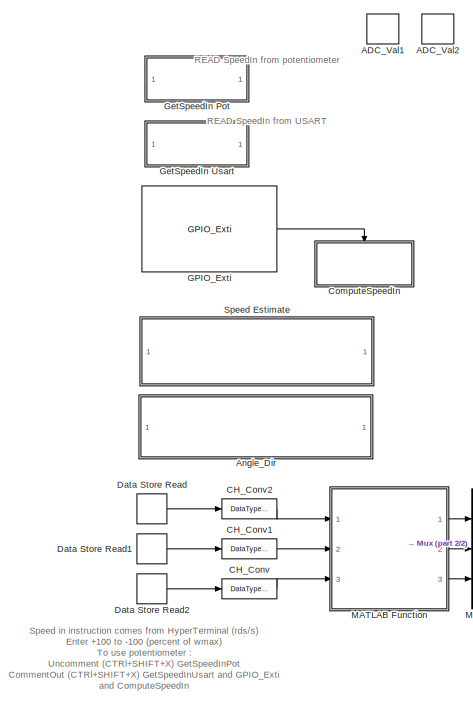
[diagram: root canvas - part 1/2, left side, full height]
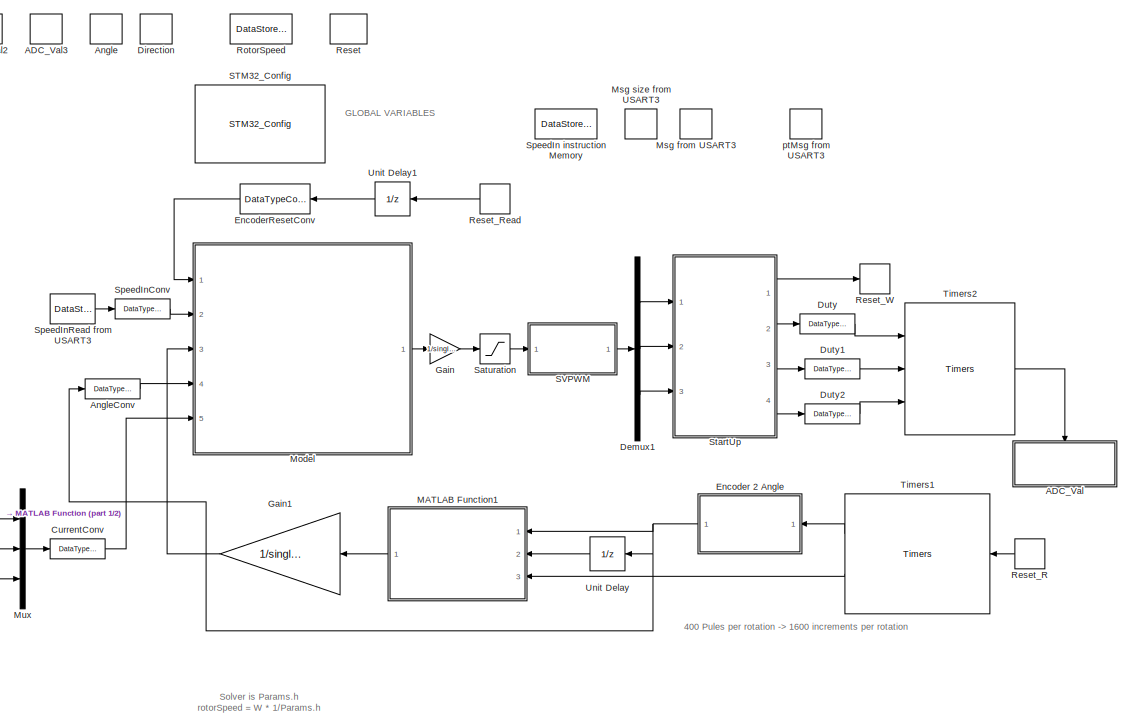
[diagram: root canvas - part 2/2, center side, full height]
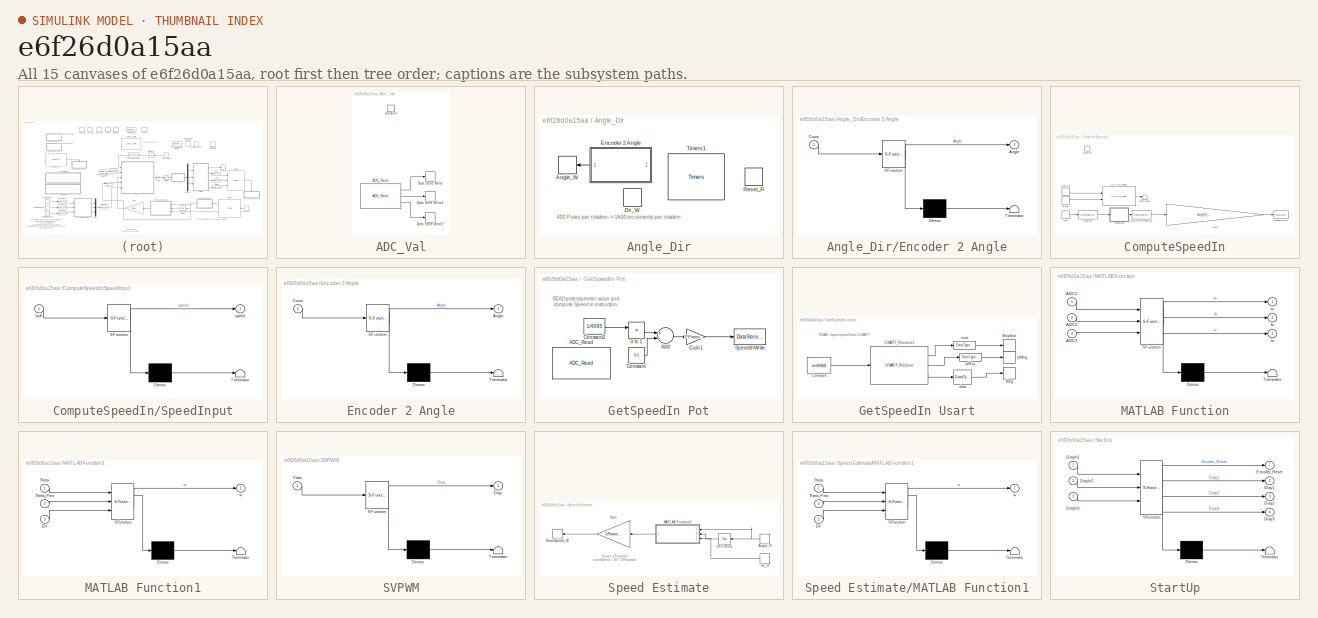
[diagram: thumbnail index - all 15 canvases of the model, root first then tree order]
MODEL slx_e6f26d0a15aa
KIND model
CONFIG AbsTol = auto
CONFIG EnableMultiTasking = on
CONFIG FixedStep = 0.001
CONFIG MaxStep = auto
CONFIG MinStep = auto
CONFIG PostLoadFcn = PMSM_Params
CONFIG RelTol = 1e-3
CONFIG SampleTimeConstraint = Unconstrained
CONFIG Solver = FixedStepAuto
CONFIG SolverName = FixedStepAuto
CONFIG StartTime = 0.0
CONFIG StopTime = 0.8
BLOCK [SubSystem] ADC_Val
  Ports = [0, 0, 0, 1]
  RequestExecContextInheritance = off
  TreatAsAtomicUnit = on
BLOCK [Reference] ADC_Val/ADC_Read  REF=ADC_Lib/ADC_Read
  Ports = [0, 3]
  SourceBlock = ADC_Lib/ADC_Read
  SourceProductName = Target Support Package - STM32 Adapter
  SourceType = ADC_Read
BLOCK [DataStoreWrite] ADC_Val/Data Store Write
  DataStoreName = CH1
  Ports = [1]
BLOCK [DataStoreWrite] ADC_Val/Data Store Write1
  DataStoreName = CH2
  Ports = [1]
BLOCK [DataStoreWrite] ADC_Val/Data Store Write2
  DataStoreName = CH3
  Ports = [1]
BLOCK [TriggerPort] ADC_Val/function
  Ports = []
  StatesWhenEnabling = held
  TriggerType = function-call
  VariantControl = Variant
BLOCK [DataStoreMemory] ADC_Val1
  DataStoreName = CH1
  OutDataTypeStr = fixdt('uint16', 'DataTypeOverride', 'Off')
  OutMax = 4095
  OutMin = 0
  ReadBeforeWriteMsg = warning
  ShowAdditionalParam = off
  WriteAfterReadMsg = warning
  WriteAfterWriteMsg = warning
BLOCK [DataStoreMemory] ADC_Val2
  DataStoreName = CH2
  OutDataTypeStr = fixdt('uint16', 'DataTypeOverride', 'Off')
  OutMax = 4095
  OutMin = 0
  ReadBeforeWriteMsg = warning
  ShowAdditionalParam = off
  WriteAfterReadMsg = warning
  WriteAfterWriteMsg = warning
BLOCK [DataStoreMemory] ADC_Val3
  DataStoreName = CH3
  OutDataTypeStr = fixdt('uint16', 'DataTypeOverride', 'Off')
  OutMax = 4095
  OutMin = 0
  ReadBeforeWriteMsg = warning
  ShowAdditionalParam = off
  WriteAfterReadMsg = warning
  WriteAfterWriteMsg = warning
BLOCK [DataStoreMemory] Angle
  DataStoreName = Angle
  OutDataTypeStr = fixdt('single', 'DataTypeOverride', 'Off')
  ReadBeforeWriteMsg = warning
  ShowAdditionalParam = off
  WriteAfterReadMsg = warning
  WriteAfterWriteMsg = warning
BLOCK [DataTypeConversion] AngleConv
  OutDataTypeStr = single
  RndMeth = Floor
  SaturateOnIntegerOverflow = off
BLOCK [SubSystem] Angle_Dir
  Commented = on
  Ports = []
  RequestExecContextInheritance = off
  SystemSampleTime = 0.001
  TreatAsAtomicUnit = on
BLOCK [DataStoreWrite] Angle_Dir/Angle_W
  DataStoreName = Angle
  Ports = [1]
BLOCK [DataStoreWrite] Angle_Dir/Dir_W
  DataStoreName = Dir
  Ports = [1]
BLOCK [SubSystem] Angle_Dir/Encoder 2 Angle
  ErrorFcn = Stateflow.Translate.translate
  MinAlgLoopOccurrences = on
  PermitHierarchicalResolution = ExplicitOnly
  Ports = [1, 1]
  RequestExecContextInheritance = off
  SFBlockType = MATLAB Function
  TreatAsAtomicUnit = on
BLOCK [Demux] Angle_Dir/Encoder 2 Angle/ Demux 
  Outputs = 1
  Ports = [1, 1]
BLOCK [S-Function] Angle_Dir/Encoder 2 Angle/ SFunction 
  EnableBusSupport = on
  FunctionName = sf_sfun
  Parameters = Params
  PortCounts = [1 2]
  Ports = [1, 2]
  SFcnIsStateOwnerBlock = off
  SFunctionDeploymentMode = off
  Tag = Stateflow S-Function MotorControl 2
BLOCK [Terminator] Angle_Dir/Encoder 2 Angle/ Terminator 
BLOCK [Outport] Angle_Dir/Encoder 2 Angle/Angle
  IconDisplay = Port number
BLOCK [Inport] Angle_Dir/Encoder 2 Angle/Count
  IconDisplay = Port number
BLOCK [DataStoreRead] Angle_Dir/Reset_R
  DataStoreName = Reset
  Ports = [0, 1]
BLOCK [Reference] Angle_Dir/Timers1  REF=TIMERS_Lib/Timers
  Ports = []
  SourceBlock = TIMERS_Lib/Timers
  SourceProductName = Target Support Package - STM32 Adapter
  SourceType = Timers
BLOCK [DataTypeConversion] CH_Conv
  OutDataTypeStr = uint16
  RndMeth = Floor
  SaturateOnIntegerOverflow = off
BLOCK [DataTypeConversion] CH_Conv1
  OutDataTypeStr = uint16
  RndMeth = Floor
  SaturateOnIntegerOverflow = off
BLOCK [DataTypeConversion] CH_Conv2
  OutDataTypeStr = uint16
  RndMeth = Floor
  SaturateOnIntegerOverflow = off
BLOCK [SubSystem] ComputeSpeedIn
  Ports = [0, 0, 0, 1]
  RequestExecContextInheritance = off
  TreatAsAtomicUnit = on
BLOCK [DataTypeConversion] ComputeSpeedIn/Data Type Conversion
  OutDataTypeStr = single
  RndMeth = Floor
  SaturateOnIntegerOverflow = off
BLOCK [Gain] ComputeSpeedIn/Gain1
  Gain = single(single(Params.wmax)*single(Params.p)/single(100))
  OutDataTypeStr = fixdt('single', 'DataTypeOverride', 'Off')
  ParamDataTypeStr = double
  SaturateOnIntegerOverflow = off
BLOCK [DataStoreRead] ComputeSpeedIn/Msg
  DataStoreName = Msg
  Ports = [0, 1]
BLOCK [DataStoreRead] ComputeSpeedIn/MsgSize
  DataStoreName = MsgSize
  Ports = [0, 1]
BLOCK [DataStoreWrite] ComputeSpeedIn/SpeedInWrite
  DataStoreName = SpeedIn
  Ports = [1]
BLOCK [SubSystem] ComputeSpeedIn/SpeedInput
  ErrorFcn = Stateflow.Translate.translate
  PermitHierarchicalResolution = ExplicitOnly
  Ports = [1, 1]
  RequestExecContextInheritance = off
  SFBlockType = MATLAB Function
  TreatAsAtomicUnit = on
BLOCK [Demux] ComputeSpeedIn/SpeedInput/ Demux 
  Outputs = 1
  Ports = [1, 1]
BLOCK [S-Function] ComputeSpeedIn/SpeedInput/ SFunction 
  EnableBusSupport = on
  FunctionName = sf_sfun
  PortCounts = [1 2]
  Ports = [1, 2]
  SFcnIsStateOwnerBlock = off
  SFunctionDeploymentMode = off
  Tag = Stateflow S-Function MotorControl 4
BLOCK [Terminator] ComputeSpeedIn/SpeedInput/ Terminator 
BLOCK [Inport] ComputeSpeedIn/SpeedInput/buff
  IconDisplay = Port number
BLOCK [Outport] ComputeSpeedIn/SpeedInput/speed
  IconDisplay = Port number
BLOCK [Terminator] ComputeSpeedIn/Terminator
BLOCK [Reference] ComputeSpeedIn/USART_Send1  REF=USART_Lib/USART_Send
  Ports = [2, 1]
  SourceBlock = USART_Lib/USART_Send
  SourceProductName = Target Support Package - STM32 Adapter
  SourceType = USART_Send
BLOCK [TriggerPort] ComputeSpeedIn/function
  Ports = []
  StatesWhenEnabling = held
  TriggerType = function-call
  VariantControl = Variant
BLOCK [DataTypeConversion] ComputeSpeedIn/msgConv
  OutDataTypeStr = uint8
  RndMeth = Floor
  SaturateOnIntegerOverflow = off
BLOCK [DataStoreRead] ComputeSpeedIn/ptMsg
  DataStoreName = ptMsg
  Ports = [0, 1]
BLOCK [DataTypeConversion] CurrentConv
  OutDataTypeStr = single
  RndMeth = Floor
  SaturateOnIntegerOverflow = off
BLOCK [DataStoreRead] Data Store Read
  DataStoreName = CH1
  Ports = [0, 1]
BLOCK [DataStoreRead] Data Store Read1
  DataStoreName = CH2
  Ports = [0, 1]
BLOCK [DataStoreRead] Data Store Read2
  DataStoreName = CH3
  Ports = [0, 1]
BLOCK [Demux] Demux1
  DisplayOption = bar
  Outputs = 3
  Ports = [1, 3]
BLOCK [DataStoreMemory] Direction
  DataStoreName = Dir
  OutDataTypeStr = fixdt('uint8', 'DataTypeOverride', 'Off')
  ReadBeforeWriteMsg = warning
  ShowAdditionalParam = off
  WriteAfterReadMsg = warning
  WriteAfterWriteMsg = warning
BLOCK [DataTypeConversion] Duty
  OutDataTypeStr = fixdt('single', 'DataTypeOverride', 'Off')
  RndMeth = Floor
  SaturateOnIntegerOverflow = off
BLOCK [DataTypeConversion] Duty1
  OutDataTypeStr = fixdt('single', 'DataTypeOverride', 'Off')
  RndMeth = Floor
  SaturateOnIntegerOverflow = off
BLOCK [DataTypeConversion] Duty2
  OutDataTypeStr = fixdt('single', 'DataTypeOverride', 'Off')
  RndMeth = Floor
  SaturateOnIntegerOverflow = off
BLOCK [SubSystem] Encoder 2 Angle
  ErrorFcn = Stateflow.Translate.translate
  MinAlgLoopOccurrences = on
  PermitHierarchicalResolution = ExplicitOnly
  Ports = [1, 1]
  RequestExecContextInheritance = off
  SFBlockType = MATLAB Function
  TreatAsAtomicUnit = on
BLOCK [Demux] Encoder 2 Angle/ Demux 
  Outputs = 1
  Ports = [1, 1]
BLOCK [S-Function] Encoder 2 Angle/ SFunction 
  EnableBusSupport = on
  FunctionName = sf_sfun
  Parameters = Params
  PortCounts = [1 2]
  Ports = [1, 2]
  SFcnIsStateOwnerBlock = off
  SFunctionDeploymentMode = off
  Tag = Stateflow S-Function MotorControl 6
BLOCK [Terminator] Encoder 2 Angle/ Terminator 
BLOCK [Outport] Encoder 2 Angle/Angle
  IconDisplay = Port number
BLOCK [Inport] Encoder 2 Angle/Count
  IconDisplay = Port number
BLOCK [DataTypeConversion] EncoderResetConv
  OutDataTypeStr = boolean
  RndMeth = Floor
  SaturateOnIntegerOverflow = off
BLOCK [Reference] GPIO_Exti  REF=GPIO_Lib/GPIO_Exti
  Ports = [0, 1]
  SourceBlock = GPIO_Lib/GPIO_Exti
  SourceProductName = Target Support Package - STM32 Adapter
  SourceType = GPIO_Exti
BLOCK [Gain] Gain
  Gain = 1/single(Params.Imax)
  OutDataTypeStr = Inherit: Inherit via internal rule
  ParamDataTypeStr = Inherit: Inherit via internal rule
  SaturateOnIntegerOverflow = off
BLOCK [Gain] Gain1
  Gain = 1/single(Params.h)
  OutDataTypeStr = double
  ParamDataTypeStr = Inherit: Inherit via internal rule
  SaturateOnIntegerOverflow = off
BLOCK [SubSystem] GetSpeedIn Pot
  Commented = on
  Ports = []
  RequestExecContextInheritance = off
  SystemSampleTime = 0.1
  TreatAsAtomicUnit = on
BLOCK [Product] GetSpeedIn Pot/0 to 1
  InputSameDT = off
  OutDataTypeStr = double
  OutMax = 1
  OutMin = 0
  Ports = [2, 1]
  SaturateOnIntegerOverflow = off
BLOCK [Reference] GetSpeedIn Pot/ADC_Read  REF=ADC_Lib/ADC_Read
  Ports = []
  SourceBlock = ADC_Lib/ADC_Read
  SourceProductName = Target Support Package - STM32 Adapter
  SourceType = ADC_Read
BLOCK [Sum] GetSpeedIn Pot/Add
  AccumDataTypeStr = double
  InputSameDT = off
  Inputs = +-
  OutDataTypeStr = Inherit: Inherit via internal rule
  OutMax = 0.5
  OutMin = -0.5
  Ports = [2, 1]
  SaturateOnIntegerOverflow = off
BLOCK [Constant] GetSpeedIn Pot/Constant
  Value = 0.5
BLOCK [Constant] GetSpeedIn Pot/Constant2
  Value = 1/4095
BLOCK [Gain] GetSpeedIn Pot/Gain1
  Gain = 2*Params.wmax*Params.p*0.9
  OutDataTypeStr = double
  ParamDataTypeStr = double
  SaturateOnIntegerOverflow = off
BLOCK [DataStoreWrite] GetSpeedIn Pot/SpeedInWrite
  DataStoreName = SpeedIn
  Ports = [1]
BLOCK [SubSystem] GetSpeedIn Usart
  Ports = []
  RequestExecContextInheritance = off
  SystemSampleTime = 0.1
  TreatAsAtomicUnit = on
BLOCK [Constant] GetSpeedIn Usart/Constant
  OutDataTypeStr = fixdt('uint16', 'DataTypeOverride', 'Off')
  Value = uint16(4)
BLOCK [DataStoreWrite] GetSpeedIn Usart/Msg
  DataStoreName = Msg
  Ports = [1]
BLOCK [DataStoreWrite] GetSpeedIn Usart/MsgSize
  DataStoreName = MsgSize
  Ports = [1]
BLOCK [Reference] GetSpeedIn Usart/USART_Receive1  REF=USART_Lib/USART_Receive
  Ports = [1, 3]
  SourceBlock = USART_Lib/USART_Receive
  SourceProductName = Target Support Package - STM32 Adapter
  SourceType = USART_Receive
BLOCK [DataTypeConversion] GetSpeedIn Usart/data
  OutDataTypeStr = fixdt('uint8', 'DataTypeOverride', 'Off')
  RndMeth = Floor
  SaturateOnIntegerOverflow = off
BLOCK [DataStoreWrite] GetSpeedIn Usart/ptMsg
  DataStoreName = ptMsg
  Ports = [1]
BLOCK [DataTypeConversion] GetSpeedIn Usart/ptRcv
  OutDataTypeStr = fixdt('uint32', 'DataTypeOverride', 'Off')
  RndMeth = Floor
  SaturateOnIntegerOverflow = off
BLOCK [DataTypeConversion] GetSpeedIn Usart/size
  OutDataTypeStr = fixdt('uint16', 'DataTypeOverride', 'Off')
  RndMeth = Floor
  SaturateOnIntegerOverflow = off
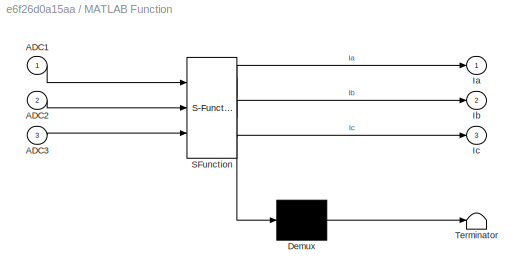
BLOCK [SubSystem] MATLAB Function
  ErrorFcn = Stateflow.Translate.translate
  PermitHierarchicalResolution = ExplicitOnly
  Ports = [3, 3]
  RequestExecContextInheritance = off
  SFBlockType = MATLAB Function
  TreatAsAtomicUnit = on
BLOCK [Demux] MATLAB Function/ Demux 
  Outputs = 1
  Ports = [1, 1]
BLOCK [S-Function] MATLAB Function/ SFunction 
  EnableBusSupport = on
  FunctionName = sf_sfun
  PortCounts = [3 4]
  Ports = [3, 4]
  SFcnIsStateOwnerBlock = off
  SFunctionDeploymentMode = off
  Tag = Stateflow S-Function MotorControl 3
BLOCK [Terminator] MATLAB Function/ Terminator 
BLOCK [Inport] MATLAB Function/ADC1
  IconDisplay = Port number
BLOCK [Inport] MATLAB Function/ADC2
  IconDisplay = Port number
  Port = 2
BLOCK [Inport] MATLAB Function/ADC3
  IconDisplay = Port number
  Port = 3
BLOCK [Outport] MATLAB Function/Ia
  IconDisplay = Port number
BLOCK [Outport] MATLAB Function/Ib
  IconDisplay = Port number
  Port = 2
BLOCK [Outport] MATLAB Function/Ic
  IconDisplay = Port number
  Port = 3
BLOCK [SubSystem] MATLAB Function1
  ErrorFcn = Stateflow.Translate.translate
  PermitHierarchicalResolution = ExplicitOnly
  Ports = [3, 1]
  RequestExecContextInheritance = off
  SFBlockType = MATLAB Function
  TreatAsAtomicUnit = on
BLOCK [Demux] MATLAB Function1/ Demux 
  Outputs = 1
  Ports = [1, 1]
BLOCK [S-Function] MATLAB Function1/ SFunction 
  EnableBusSupport = on
  FunctionName = sf_sfun
  PortCounts = [3 2]
  Ports = [3, 2]
  SFcnIsStateOwnerBlock = off
  SFunctionDeploymentMode = off
  Tag = Stateflow S-Function MotorControl 8
BLOCK [Terminator] MATLAB Function1/ Terminator 
BLOCK [Inport] MATLAB Function1/Dir
  IconDisplay = Port number
  Port = 3
BLOCK [Inport] MATLAB Function1/Theta
  IconDisplay = Port number
BLOCK [Inport] MATLAB Function1/Theta_Prev
  IconDisplay = Port number
  Port = 2
BLOCK [Outport] MATLAB Function1/w
  IconDisplay = Port number
BLOCK [ModelReference] Model
  ModelNameDialog = PMSM_FOC_Compute.slx
  ModelReferenceVersion = 1.373
  Ports = [5, 1]
BLOCK [DataStoreMemory] Msg from USART3
  DataStoreName = Msg
  InitialValue = [0,0,0,0,0,0,0,0]
  OutDataTypeStr = fixdt('uint8', 'DataTypeOverride', 'Off')
  ReadBeforeWriteMsg = warning
  ShowAdditionalParam = off
  WriteAfterReadMsg = warning
  WriteAfterWriteMsg = warning
BLOCK [DataStoreMemory] Msg size from USART3
  DataStoreName = MsgSize
  OutDataTypeStr = fixdt('uint16', 'DataTypeOverride', 'Off')
  ReadBeforeWriteMsg = warning
  ShowAdditionalParam = off
  WriteAfterReadMsg = warning
  WriteAfterWriteMsg = warning
BLOCK [Mux] Mux
  DisplayOption = bar
  Inputs = 3
  Ports = [3, 1]
BLOCK [DataStoreMemory] Reset
  DataStoreName = Reset
  InitialValue = 1
  OutDataTypeStr = fixdt('uint8', 'DataTypeOverride', 'Off')
  ReadBeforeWriteMsg = warning
  ShowAdditionalParam = off
  WriteAfterReadMsg = warning
  WriteAfterWriteMsg = warning
BLOCK [DataStoreRead] Reset_R
  DataStoreName = Reset
  Ports = [0, 1]
BLOCK [DataStoreRead] Reset_Read
  DataStoreName = Reset
  Ports = [0, 1]
BLOCK [DataStoreWrite] Reset_W
  DataStoreName = Reset
  Ports = [1]
BLOCK [DataStoreMemory] RotorSpeed
  DataStoreName = RotorSpeed
  OutDataTypeStr = fixdt('single', 'DataTypeOverride', 'Off')
  ReadBeforeWriteMsg = warning
  ShowAdditionalParam = off
  WriteAfterReadMsg = warning
  WriteAfterWriteMsg = warning
BLOCK [Reference] STM32_Config  REF=STM32_Config_Lib/STM32_Config
  Ports = []
  Priority = 0
  SourceBlock = STM32_Config_Lib/STM32_Config
  SourceProductName = Target Support Package - STM32 Adapter
  SourceType = STM32_Config
BLOCK [SubSystem] SVPWM
  ErrorFcn = Stateflow.Translate.translate
  PermitHierarchicalResolution = ExplicitOnly
  Ports = [1, 1]
  RequestExecContextInheritance = off
  SFBlockType = MATLAB Function
  TreatAsAtomicUnit = on
BLOCK [Demux] SVPWM/ Demux 
  Outputs = 1
  Ports = [1, 1]
BLOCK [S-Function] SVPWM/ SFunction 
  EnableBusSupport = on
  FunctionName = sf_sfun
  PortCounts = [1 2]
  Ports = [1, 2]
  SFcnIsStateOwnerBlock = off
  SFunctionDeploymentMode = off
  Tag = Stateflow S-Function MotorControl 7
BLOCK [Terminator] SVPWM/ Terminator 
BLOCK [Outport] SVPWM/Duty
  IconDisplay = Port number
BLOCK [Inport] SVPWM/Vabc
  IconDisplay = Port number
BLOCK [Saturate] Saturation
  InputPortMap = u0
  LowerLimit = -1
  Ports = [1, 1]
  UpperLimit = 1
BLOCK [SubSystem] Speed Estimate
  Commented = on
  Ports = []
  RequestExecContextInheritance = off
  SystemSampleTime = 1/500
  TreatAsAtomicUnit = on
BLOCK [DataStoreRead] Speed Estimate/Angle_R
  DataStoreName = Angle
  Ports = [0, 1]
BLOCK [DataStoreRead] Speed Estimate/Dir_R
  DataStoreName = Dir
  Ports = [0, 1]
BLOCK [Gain] Speed Estimate/Gain
  Gain = 1/Params.h
  OutDataTypeStr = double
  ParamDataTypeStr = Inherit: Inherit via internal rule
  SaturateOnIntegerOverflow = off
BLOCK [SubSystem] Speed Estimate/MATLAB Function1
  ErrorFcn = Stateflow.Translate.translate
  PermitHierarchicalResolution = ExplicitOnly
  Ports = [3, 1]
  RequestExecContextInheritance = off
  SFBlockType = MATLAB Function
  TreatAsAtomicUnit = on
BLOCK [Demux] Speed Estimate/MATLAB Function1/ Demux 
  Outputs = 1
  Ports = [1, 1]
BLOCK [S-Function] Speed Estimate/MATLAB Function1/ SFunction 
  EnableBusSupport = on
  FunctionName = sf_sfun
  PortCounts = [3 2]
  Ports = [3, 2]
  SFcnIsStateOwnerBlock = off
  SFunctionDeploymentMode = off
  Tag = Stateflow S-Function MotorControl 5
BLOCK [Terminator] Speed Estimate/MATLAB Function1/ Terminator 
BLOCK [Inport] Speed Estimate/MATLAB Function1/Dir
  IconDisplay = Port number
  Port = 3
BLOCK [Inport] Speed Estimate/MATLAB Function1/Theta
  IconDisplay = Port number
BLOCK [Inport] Speed Estimate/MATLAB Function1/Theta_Prev
  IconDisplay = Port number
  Port = 2
BLOCK [Outport] Speed Estimate/MATLAB Function1/w
  IconDisplay = Port number
BLOCK [DataStoreWrite] Speed Estimate/RotorSpeed_W
  DataStoreName = RotorSpeed
  Ports = [1]
BLOCK [UnitDelay] Speed Estimate/Unit Delay
  InputProcessing = Elements as channels (sample based)
  SampleTime = -1
BLOCK [DataStoreMemory] SpeedIn instruction Memory
  DataStoreName = SpeedIn
  OutDataTypeStr = fixdt('single', 'DataTypeOverride', 'Off')
  OutMax = +100
  OutMin = -100
  ReadBeforeWriteMsg = warning
  ShowAdditionalParam = off
  WriteAfterReadMsg = warning
  WriteAfterWriteMsg = warning
BLOCK [DataTypeConversion] SpeedInConv
  OutDataTypeStr = single
  RndMeth = Floor
  SaturateOnIntegerOverflow = off
BLOCK [DataStoreRead] SpeedInRead from USART3
  DataStoreName = SpeedIn
  Ports = [0, 1]
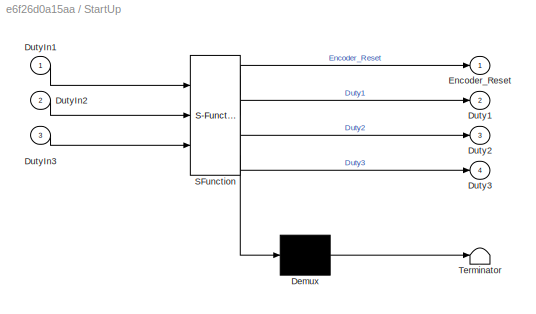
BLOCK [SubSystem] StartUp
  ErrorFcn = Stateflow.Translate.translate
  MinAlgLoopOccurrences = on
  PermitHierarchicalResolution = ExplicitOnly
  Ports = [3, 4]
  RequestExecContextInheritance = off
  SFBlockType = Chart
  TreatAsAtomicUnit = on
BLOCK [Demux] StartUp/ Demux 
  Outputs = 1
  Ports = [1, 1]
BLOCK [S-Function] StartUp/ SFunction 
  EnableBusSupport = on
  FunctionName = sf_sfun
  PortCounts = [3 5]
  Ports = [3, 5]
  SFcnIsStateOwnerBlock = off
  SFunctionDeploymentMode = off
  Tag = Stateflow S-Function MotorControl 1
BLOCK [Terminator] StartUp/ Terminator 
BLOCK [Outport] StartUp/Duty1
  IconDisplay = Port number
  Port = 2
BLOCK [Outport] StartUp/Duty2
  IconDisplay = Port number
  Port = 3
BLOCK [Outport] StartUp/Duty3
  IconDisplay = Port number
  Port = 4
BLOCK [Inport] StartUp/DutyIn1
  IconDisplay = Port number
BLOCK [Inport] StartUp/DutyIn2
  IconDisplay = Port number
  Port = 2
BLOCK [Inport] StartUp/DutyIn3
  IconDisplay = Port number
  Port = 3
BLOCK [Outport] StartUp/Encoder_Reset
  IconDisplay = Port number
BLOCK [Reference] Timers1  REF=TIMERS_Lib/Timers
  Ports = [1, 2]
  SourceBlock = TIMERS_Lib/Timers
  SourceProductName = Target Support Package - STM32 Adapter
  SourceType = Timers
BLOCK [Reference] Timers2  REF=TIMERS_Lib/Timers
  Ports = [3, 1]
  SourceBlock = TIMERS_Lib/Timers
  SourceProductName = Target Support Package - STM32 Adapter
  SourceType = Timers
BLOCK [UnitDelay] Unit Delay
  InputProcessing = Elements as channels (sample based)
  SampleTime = -1
BLOCK [UnitDelay] Unit Delay1
  InputProcessing = Elements as channels (sample based)
  SampleTime = -1
BLOCK [DataStoreMemory] ptMsg from USART3
  DataStoreName = ptMsg
  OutDataTypeStr = fixdt('uint32', 'DataTypeOverride', 'Off')
  ReadBeforeWriteMsg = warning
  ShowAdditionalParam = off
  WriteAfterReadMsg = warning
  WriteAfterWriteMsg = warning
ANNOTATION (root): 400 Pules per rotation -> 1600 increments per rotation
ANNOTATION (root): GLOBAL VARIABLES
ANNOTATION (root): READ SpeedIn from USART
ANNOTATION (root): READ SpeedIn from potentiometer
ANNOTATION (root): Solver is Params.h rotorSpeed = W * 1/Params.h
ANNOTATION (root): Speed in instruction comes from HyperTerminal (rds/s) Enter +100 to -100 (percent of wmax) To use potentiometer : Uncomment (CTRl+SHIFT+X) GetSpeedInPot CommentOut (CTRl+SHIFT+X) GetSpeedInUsart and GPIO_Exti and ComputeSpeedIn To use USART: Uncomment (CTRl+SHIFT+X) GetSpeedInUsart and GPIO_Exti and ComputeSpeedIn CommentOut (CTRl+SHIFT+X) GetSpeedInPot
ANNOTATION Angle_Dir: 400 Pules per rotation -> 1600 increments per rotation
ANNOTATION GetSpeedIn Pot: READ potentiometer value and compute Speed in instruction.
ANNOTATION GetSpeedIn Usart: READ input speed from USART
ANNOTATION Speed Estimate: Solver is Params.h rotorSpeed = W * 1/Params.h
LINE ADC_Val/ADC_Read:1 -> ADC_Val/Data Store Write:1
LINE ADC_Val/ADC_Read:2 -> ADC_Val/Data Store Write1:1
LINE ADC_Val/ADC_Read:3 -> ADC_Val/Data Store Write2:1
LINE AngleConv:1 -> Model:4
LINE Angle_Dir/Encoder 2 Angle:1 -> Angle_Dir/Angle_W:1
LINE CH_Conv1:1 -> MATLAB Function:2
LINE CH_Conv2:1 -> MATLAB Function:1
LINE CH_Conv:1 -> MATLAB Function:3
LINE ComputeSpeedIn/Data Type Conversion:1 -> ComputeSpeedIn/Gain1:1
LINE ComputeSpeedIn/Gain1:1 -> ComputeSpeedIn/SpeedInWrite:1
LINE ComputeSpeedIn/Msg:1 -> ComputeSpeedIn/msgConv:1
LINE ComputeSpeedIn/MsgSize:1 -> ComputeSpeedIn/USART_Send1:1
LINE ComputeSpeedIn/SpeedInput:1 -> ComputeSpeedIn/Data Type Conversion:1
LINE ComputeSpeedIn/USART_Send1:1 -> ComputeSpeedIn/Terminator:1
LINE ComputeSpeedIn/msgConv:1 -> ComputeSpeedIn/SpeedInput:1
LINE ComputeSpeedIn/ptMsg:1 -> ComputeSpeedIn/USART_Send1:2
LINE CurrentConv:1 -> Model:5
LINE Data Store Read1:1 -> CH_Conv1:1
LINE Data Store Read2:1 -> CH_Conv:1
LINE Data Store Read:1 -> CH_Conv2:1
LINE Demux1:1 -> StartUp:1
LINE Demux1:2 -> StartUp:2
LINE Demux1:3 -> StartUp:3
LINE Duty1:1 -> Timers2:2
LINE Duty2:1 -> Timers2:3
LINE Duty:1 -> Timers2:1
NET Encoder 2 Angle:1 -> AngleConv:1, MATLAB Function1:1, Unit Delay:1
LINE EncoderResetConv:1 -> Model:1
LINE GPIO_Exti:1 -> ComputeSpeedIn:trigger
LINE Gain1:1 -> Model:3
LINE Gain:1 -> Saturation:1
LINE GetSpeedIn Pot/0 to 1:1 -> GetSpeedIn Pot/Add:1
LINE GetSpeedIn Pot/Add:1 -> GetSpeedIn Pot/Gain1:1
LINE GetSpeedIn Pot/Constant2:1 -> GetSpeedIn Pot/0 to 1:1
LINE GetSpeedIn Pot/Constant:1 -> GetSpeedIn Pot/Add:2
LINE GetSpeedIn Pot/Gain1:1 -> GetSpeedIn Pot/SpeedInWrite:1
LINE GetSpeedIn Usart/Constant:1 -> GetSpeedIn Usart/USART_Receive1:1
LINE GetSpeedIn Usart/USART_Receive1:1 -> GetSpeedIn Usart/size:1
LINE GetSpeedIn Usart/USART_Receive1:2 -> GetSpeedIn Usart/ptRcv:1
LINE GetSpeedIn Usart/USART_Receive1:3 -> GetSpeedIn Usart/data:1
LINE GetSpeedIn Usart/data:1 -> GetSpeedIn Usart/Msg:1
LINE GetSpeedIn Usart/ptRcv:1 -> GetSpeedIn Usart/ptMsg:1
LINE GetSpeedIn Usart/size:1 -> GetSpeedIn Usart/MsgSize:1
LINE MATLAB Function1:1 -> Gain1:1
LINE MATLAB Function:1 -> Mux:1
LINE MATLAB Function:2 -> Mux:2
LINE MATLAB Function:3 -> Mux:3
LINE Model:1 -> Gain:1
LINE Mux:1 -> CurrentConv:1
LINE Reset_R:1 -> Timers1:1
LINE Reset_Read:1 -> Unit Delay1:1
LINE SVPWM:1 -> Demux1:1
LINE Saturation:1 -> SVPWM:1
NET Speed Estimate/Angle_R:1 -> Speed Estimate/MATLAB Function1:1, Speed Estimate/Unit Delay:1
LINE Speed Estimate/Dir_R:1 -> Speed Estimate/MATLAB Function1:3
LINE Speed Estimate/Gain:1 -> Speed Estimate/RotorSpeed_W:1
LINE Speed Estimate/MATLAB Function1:1 -> Speed Estimate/Gain:1
LINE Speed Estimate/Unit Delay:1 -> Speed Estimate/MATLAB Function1:2
LINE SpeedInConv:1 -> Model:2
LINE SpeedInRead from USART3:1 -> SpeedInConv:1
LINE StartUp:1 -> Reset_W:1
LINE StartUp:2 -> Duty:1
LINE StartUp:3 -> Duty1:1
LINE StartUp:4 -> Duty2:1
LINE Timers1:1 -> Encoder 2 Angle:1
LINE Timers1:2 -> MATLAB Function1:3
LINE Timers2:1 -> ADC_Val:trigger
LINE Unit Delay1:1 -> EncoderResetConv:1
LINE Unit Delay:1 -> MATLAB Function1:2
note: NET lines group one-source signal fan-out (src -> all destinations, sorted); 1:1 wires keep LINE
CHART StartUp states=2 transitions=3
  STATE_LABEL 'Startup\nentry: Encoder_Reset = uint8(1);\nDuty1 = single(30);\nDuty2 =single(-1);\nDuty3 = single(5);\n\n'
  STATE_LABEL 'Running\nentry: Encoder_Reset = uint8(0);\nDuty1 = single(DutyIn1);\nDuty2 = single(DutyIn2);\nDuty3 = single(DutyIn3);'
CHART Angle_Dir/Encoder 2 Angle states=1 transitions=1
  STATE_LABEL 'eML_blk_kernel()'
  STATE_LABEL "SCRIPT:\nfunction Angle = Count2Angle(Count,Params)\n\nTemp = cast(Count,'double');\nAngle = (Temp*Params.Encoder_Gain+Params.Theta_Zero);\nAngle = mod(Angle,2*pi);\nend"
CHART MATLAB Function states=1 transitions=1
  STATE_LABEL 'eML_blk_kernel()'
  STATE_LABEL "SCRIPT:\nfunction [Ia,Ib,Ic] = Convert(ADC1,ADC2,ADC3)\n% convert ADC output to amps (0.22 ohm resistors and gain of G=6.4)\n% Vshunt = I*0.22*G \n% ADC out = Vshunt/3.3 * 4096\n% I*0.22*G*4096/3.3\n% I = ADC_out*3.3/0.22*G*4096\nOffset = single(1.94);\nG = single(6.4);\nR = single(0.22);\nVa = ((cast(ADC1,'single')*single(3.3)/single(4096))-Offset)/G;\nVb = ((cast(ADC2,'single')*single(3.3)/single(4096))-Of...<+112ch>"
CHART ComputeSpeedIn/SpeedInput states=1 transitions=1
  STATE_LABEL 'eML_blk_kernel()'
  STATE_LABEL "SCRIPT:\nfunction speed = SpeedInput(buff)\nif coder.target('Sfun')\n    % Executing in MATLAB, Buff is null\n    speed = int32(0);\nelse\n    coder.cinclude('stdio.h');\n    \n    speed = int32(0);\n    buff1 = char(buff);\n    %speed = coder.ceval('atoi',coder.ref(buff));\n    %coder.ceval('getBuffPtr',coder.ref(buff));\n    coder.ceval('sscanf',coder.rref(buff1),'%d',coder.wref(speed));\nend\nend\n"
CHART Speed Estimate/MATLAB Function1 states=1 transitions=1
  STATE_LABEL 'eML_blk_kernel()'
  STATE_LABEL 'SCRIPT:\nfunction w = fcn(Theta,Theta_Prev,Dir)\n\n% if Dir = 1 -> downcounting, Dir = 0 -> upcounting\nif (Theta < Theta_Prev)&& (Dir == 0)\n    % Positive Roll Over\n    w = Theta+2*pi-Theta_Prev;\nelseif (Theta > Theta_Prev)&& (Dir == 1)\n    % Underflow\n    w = Theta-2*pi-Theta_Prev;\nelse\n    w = Theta-Theta_Prev;\nend'
CHART Encoder 2 Angle states=1 transitions=1
  STATE_LABEL 'eML_blk_kernel()'
  STATE_LABEL "SCRIPT:\nfunction Angle = Count2Angle(Count,Params)\n\nTemp = cast(Count,'single');\n%Angle = (Temp*single(Params.Encoder_Gain)+single(Params.Theta_Zero));\nAngle = (Temp*single(2*single(pi)/800)+single(Params.Theta_Zero));\nAngle = mod(Angle,2*single(pi));\nend"
CHART SVPWM states=1 transitions=1
  STATE_LABEL 'eML_blk_kernel()'
  STATE_LABEL 'SCRIPT:\nfunction Duty = SVPWM(Vabc)\n\n%A = Vabc;\n%Duty = (A-(min(A)+max(A))*0.5)*2/sqrt(3);\n%Duty = A*2/sqrt(3);\nDuty = single(Vabc);\nDuty = ((Duty+1)/2)*single(100); %Add 1 to go from -1;1 to 0;2 so /2 and must give percentage\nif ( Duty(1) < 0)\n    Duty(1) = single(0);\nend\nif ( Duty(2) < 0)\n    Duty(2) = single(0);\nend\nif (Duty(3) < 0)\n    Duty(3) =single(0);\nend\nif (Duty(1) > 100)\n    Duty(1) = s...<+118ch>'
CHART MATLAB Function1 states=1 transitions=1
  STATE_LABEL 'eML_blk_kernel()'
  STATE_LABEL 'SCRIPT:\nfunction w = fcn(Theta,Theta_Prev,Dir)\n\n% if Dir = 1 -> downcounting, Dir = 0 -> upcounting\nif (Theta < Theta_Prev)&& (Dir == 0)\n    % Positive Roll Over\n    w = single(Theta)+2*single(pi)-single(Theta_Prev);\nelseif (Theta > Theta_Prev)&& (Dir == 1)\n    % Underflow\n    w = single(Theta)-2*single(pi)-single(Theta_Prev);\nelse\n    w = single(Theta)-single(Theta_Prev);\nend'
